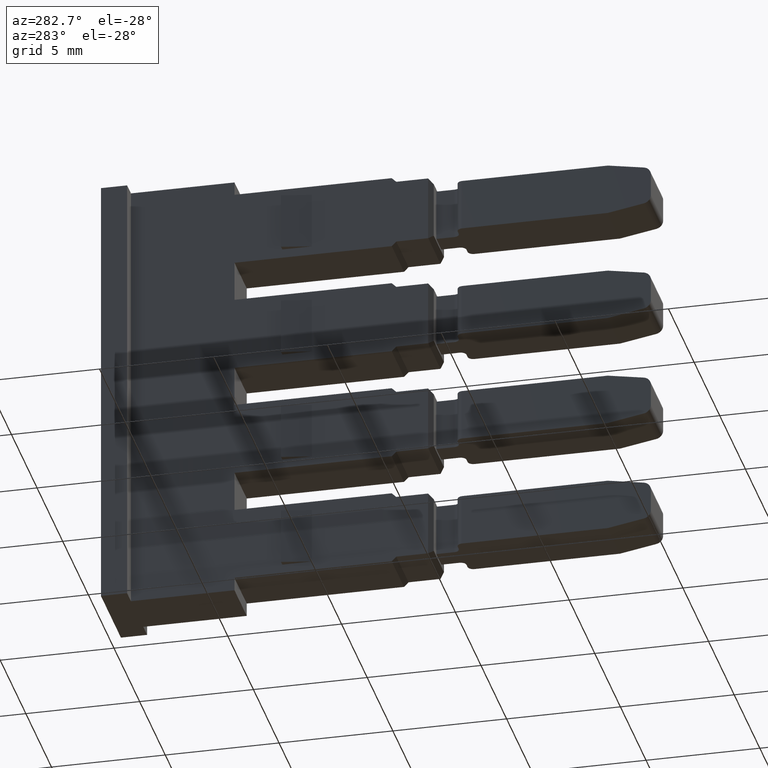
[diagram: clean part render]
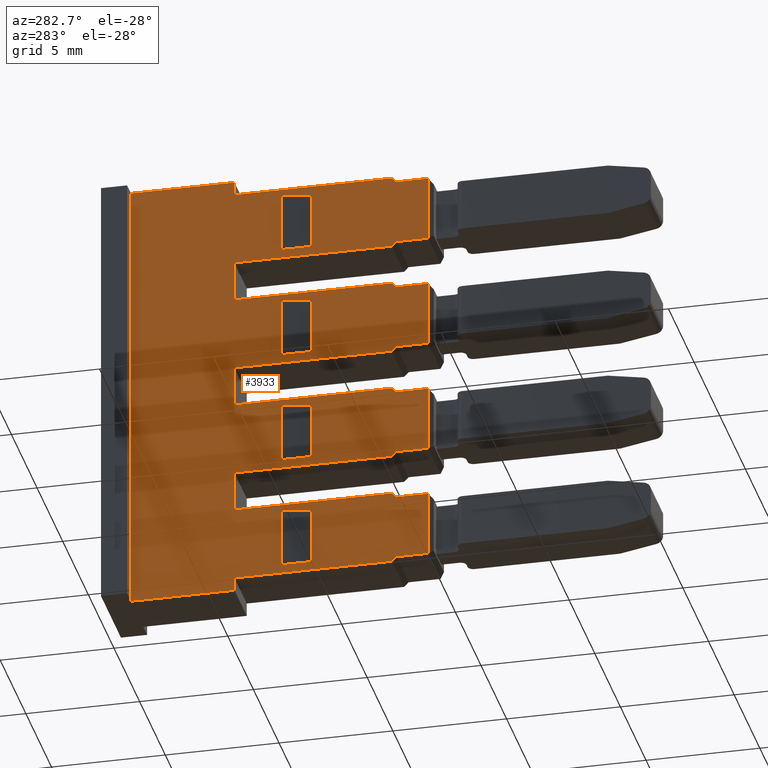
[diagram: same view with one face highlighted and labeled with its STEP entity id]
A machine part, auxiliary view. The second image highlights one B-rep face of the part: STEP entity #3933.
In plain terms, the highlighted planar face has unit normal (-1, -0, 0).
Its self-contained STEP definition (entity closure, byte-faithful):
#123 = VERTEX_POINT ( 'NONE', #4809 ) ;
#128 = VERTEX_POINT ( 'NONE', #4804 ) ;
#129 = VERTEX_POINT ( 'NONE', #4833 ) ;
#130 = VERTEX_POINT ( 'NONE', #4782 ) ;
#131 = VERTEX_POINT ( 'NONE', #4778 ) ;
#132 = VERTEX_POINT ( 'NONE', #4798 ) ;
#134 = VERTEX_POINT ( 'NONE', #4792 ) ;
#135 = VERTEX_POINT ( 'NONE', #4793 ) ;
#136 = VERTEX_POINT ( 'NONE', #4800 ) ;
#137 = VERTEX_POINT ( 'NONE', #4774 ) ;
#138 = VERTEX_POINT ( 'NONE', #4791 ) ;
#139 = VERTEX_POINT ( 'NONE', #4794 ) ;
#142 = VERTEX_POINT ( 'NONE', #4797 ) ;
#143 = VERTEX_POINT ( 'NONE', #4795 ) ;
#144 = VERTEX_POINT ( 'NONE', #4796 ) ;
#145 = VERTEX_POINT ( 'NONE', #4834 ) ;
#146 = VERTEX_POINT ( 'NONE', #4827 ) ;
#147 = VERTEX_POINT ( 'NONE', #4835 ) ;
#148 = VERTEX_POINT ( 'NONE', #4830 ) ;
#149 = VERTEX_POINT ( 'NONE', #4813 ) ;
#150 = VERTEX_POINT ( 'NONE', #4775 ) ;
#152 = VERTEX_POINT ( 'NONE', #4790 ) ;
#153 = VERTEX_POINT ( 'NONE', #4799 ) ;
#156 = VERTEX_POINT ( 'NONE', #4836 ) ;
#157 = VERTEX_POINT ( 'NONE', #4779 ) ;
#158 = VERTEX_POINT ( 'NONE', #4801 ) ;
#159 = VERTEX_POINT ( 'NONE', #4802 ) ;
#160 = VERTEX_POINT ( 'NONE', #4780 ) ;
#161 = VERTEX_POINT ( 'NONE', #4788 ) ;
#162 = VERTEX_POINT ( 'NONE', #4837 ) ;
#163 = VERTEX_POINT ( 'NONE', #4805 ) ;
#164 = VERTEX_POINT ( 'NONE', #4820 ) ;
#165 = VERTEX_POINT ( 'NONE', #4789 ) ;
#166 = VERTEX_POINT ( 'NONE', #4806 ) ;
#167 = VERTEX_POINT ( 'NONE', #4807 ) ;
#168 = VERTEX_POINT ( 'NONE', #4814 ) ;
#169 = VERTEX_POINT ( 'NONE', #4784 ) ;
#170 = VERTEX_POINT ( 'NONE', #4808 ) ;
#171 = VERTEX_POINT ( 'NONE', #4815 ) ;
#172 = VERTEX_POINT ( 'NONE', #4831 ) ;
#173 = VERTEX_POINT ( 'NONE', #4816 ) ;
#174 = VERTEX_POINT ( 'NONE', #4776 ) ;
#176 = VERTEX_POINT ( 'NONE', #4819 ) ;
#177 = VERTEX_POINT ( 'NONE', #4817 ) ;
#178 = VERTEX_POINT ( 'NONE', #4818 ) ;
#179 = VERTEX_POINT ( 'NONE', #4821 ) ;
#180 = VERTEX_POINT ( 'NONE', #4823 ) ;
#195 = VERTEX_POINT ( 'NONE', #4841 ) ;
#198 = VERTEX_POINT ( 'NONE', #4842 ) ;
#208 = VERTEX_POINT ( 'NONE', #4880 ) ;
#218 = VERTEX_POINT ( 'NONE', #4869 ) ;
#226 = VERTEX_POINT ( 'NONE', #4849 ) ;
#424 = ORIENTED_EDGE ( 'NONE', *, *, #3514, .T. ) ;
#425 = ORIENTED_EDGE ( 'NONE', *, *, #3445, .F. ) ;
#426 = ORIENTED_EDGE ( 'NONE', *, *, #3498, .T. ) ;
#427 = ORIENTED_EDGE ( 'NONE', *, *, #3509, .T. ) ;
#428 = ORIENTED_EDGE ( 'NONE', *, *, #3477, .T. ) ;
#429 = ORIENTED_EDGE ( 'NONE', *, *, #3501, .F. ) ;
#431 = ORIENTED_EDGE ( 'NONE', *, *, #3515, .T. ) ;
#432 = ORIENTED_EDGE ( 'NONE', *, *, #3472, .T. ) ;
#433 = ORIENTED_EDGE ( 'NONE', *, *, #3455, .F. ) ;
#436 = ORIENTED_EDGE ( 'NONE', *, *, #3470, .T. ) ;
#437 = ORIENTED_EDGE ( 'NONE', *, *, #3466, .T. ) ;
#438 = ORIENTED_EDGE ( 'NONE', *, *, #3524, .T. ) ;
#439 = ORIENTED_EDGE ( 'NONE', *, *, #3502, .T. ) ;
#440 = ORIENTED_EDGE ( 'NONE', *, *, #3463, .T. ) ;
#441 = ORIENTED_EDGE ( 'NONE', *, *, #3452, .T. ) ;
#442 = ORIENTED_EDGE ( 'NONE', *, *, #3529, .T. ) ;
#443 = ORIENTED_EDGE ( 'NONE', *, *, #3536, .T. ) ;
#444 = ORIENTED_EDGE ( 'NONE', *, *, #3446, .T. ) ;
#445 = ORIENTED_EDGE ( 'NONE', *, *, #3448, .T. ) ;
#448 = ORIENTED_EDGE ( 'NONE', *, *, #3473, .T. ) ;
#449 = ORIENTED_EDGE ( 'NONE', *, *, #3511, .T. ) ;
#451 = ORIENTED_EDGE ( 'NONE', *, *, #3467, .T. ) ;
#453 = ORIENTED_EDGE ( 'NONE', *, *, #3500, .T. ) ;
#454 = ORIENTED_EDGE ( 'NONE', *, *, #3454, .T. ) ;
#456 = ORIENTED_EDGE ( 'NONE', *, *, #3451, .T. ) ;
#457 = ORIENTED_EDGE ( 'NONE', *, *, #3489, .T. ) ;
#458 = ORIENTED_EDGE ( 'NONE', *, *, #3447, .F. ) ;
#459 = ORIENTED_EDGE ( 'NONE', *, *, #3459, .F. ) ;
#463 = ORIENTED_EDGE ( 'NONE', *, *, #3449, .T. ) ;
#464 = ORIENTED_EDGE ( 'NONE', *, *, #3486, .T. ) ;
#465 = ORIENTED_EDGE ( 'NONE', *, *, #3461, .T. ) ;
#466 = ORIENTED_EDGE ( 'NONE', *, *, #3532, .T. ) ;
#468 = ORIENTED_EDGE ( 'NONE', *, *, #3471, .T. ) ;
#469 = ORIENTED_EDGE ( 'NONE', *, *, #3465, .T. ) ;
#470 = ORIENTED_EDGE ( 'NONE', *, *, #3488, .T. ) ;
#473 = ORIENTED_EDGE ( 'NONE', *, *, #3512, .T. ) ;
#476 = ORIENTED_EDGE ( 'NONE', *, *, #3469, .F. ) ;
#477 = ORIENTED_EDGE ( 'NONE', *, *, #3458, .F. ) ;
#478 = ORIENTED_EDGE ( 'NONE', *, *, #3513, .T. ) ;
#479 = ORIENTED_EDGE ( 'NONE', *, *, #3456, .F. ) ;
#480 = ORIENTED_EDGE ( 'NONE', *, *, #3460, .T. ) ;
#481 = ORIENTED_EDGE ( 'NONE', *, *, #3453, .F. ) ;
#482 = ORIENTED_EDGE ( 'NONE', *, *, #3487, .T. ) ;
#495 = ORIENTED_EDGE ( 'NONE', *, *, #3450, .T. ) ;
#496 = ORIENTED_EDGE ( 'NONE', *, *, #3494, .T. ) ;
#515 = ORIENTED_EDGE ( 'NONE', *, *, #3503, .T. ) ;
#519 = ORIENTED_EDGE ( 'NONE', *, *, #3457, .T. ) ;
#520 = ORIENTED_EDGE ( 'NONE', *, *, #3462, .T. ) ;
#523 = ORIENTED_EDGE ( 'NONE', *, *, #3464, .T. ) ;
#532 = ORIENTED_EDGE ( 'NONE', *, *, #3493, .T. ) ;
#535 = ORIENTED_EDGE ( 'NONE', *, *, #3468, .F. ) ;
#545 = ORIENTED_EDGE ( 'NONE', *, *, #3528, .T. ) ;
#618 = EDGE_LOOP ( 'NONE', ( #470, #523, #456, #448 ) ) ;
#633 = EDGE_LOOP ( 'NONE', ( #496, #426, #532, #427 ) ) ;
#637 = EDGE_LOOP ( 'NONE', ( #451, #468, #432, #545 ) ) ;
#640 = EDGE_LOOP ( 'NONE', ( #466, #428, #464, #443, #459, #429, #457, #442, #440, #437, #482, #463, #477, #481, #480, #441, #454, #444, #438, #424, #458, #425, #439, #479, #453, #445, #465, #476, #519, #535, #433, #449, #515, #473, #478, #431 ) ) ;
#641 = EDGE_LOOP ( 'NONE', ( #436, #520, #469, #495 ) ) ;
#682 = VECTOR ( 'NONE', #5126, 1000.000000000000000 ) ;
#683 = VECTOR ( 'NONE', #5103, 1000.000000000000000 ) ;
#684 = VECTOR ( 'NONE', #5107, 1000.000000000000000 ) ;
#686 = VECTOR ( 'NONE', #5090, 1000.000000000000000 ) ;
#687 = VECTOR ( 'NONE', #5086, 1000.000000000000000 ) ;
#689 = VECTOR ( 'NONE', #5100, 1000.000000000000000 ) ;
#690 = VECTOR ( 'NONE', #5129, 1000.000000000000000 ) ;
#691 = VECTOR ( 'NONE', #5125, 1000.000000000000000 ) ;
#692 = VECTOR ( 'NONE', #5084, 1000.000000000000000 ) ;
#693 = VECTOR ( 'NONE', #5116, 1000.000000000000000 ) ;
#694 = VECTOR ( 'NONE', #5114, 1000.000000000000000 ) ;
#696 = VECTOR ( 'NONE', #5085, 1000.000000000000000 ) ;
#697 = VECTOR ( 'NONE', #5026, 1000.000000000000000 ) ;
#698 = VECTOR ( 'NONE', #5131, 1000.000000000000000 ) ;
#699 = VECTOR ( 'NONE', #5166, 1000.000000000000000 ) ;
#700 = VECTOR ( 'NONE', #5119, 1000.000000000000000 ) ;
#704 = VECTOR ( 'NONE', #5202, 1000.000000000000000 ) ;
#705 = VECTOR ( 'NONE', #5201, 1000.000000000000000 ) ;
#707 = VECTOR ( 'NONE', #5133, 1000.000000000000000 ) ;
#708 = VECTOR ( 'NONE', #5145, 1000.000000000000000 ) ;
#713 = VECTOR ( 'NONE', #5175, 1000.000000000000000 ) ;
#717 = VECTOR ( 'NONE', #5153, 1000.000000000000000 ) ;
#718 = VECTOR ( 'NONE', #5163, 1000.000000000000000 ) ;
#720 = VECTOR ( 'NONE', #5215, 1000.000000000000000 ) ;
#721 = VECTOR ( 'NONE', #5099, 1000.000000000000000 ) ;
#725 = VECTOR ( 'NONE', #5207, 1000.000000000000000 ) ;
#726 = VECTOR ( 'NONE', #5137, 1000.000000000000000 ) ;
#729 = VECTOR ( 'NONE', #5233, 1000.000000000000000 ) ;
#730 = VECTOR ( 'NONE', #5176, 1000.000000000000000 ) ;
#732 = VECTOR ( 'NONE', #5118, 1000.000000000000000 ) ;
#733 = VECTOR ( 'NONE', #5241, 1000.000000000000000 ) ;
#738 = VECTOR ( 'NONE', #5143, 1000.000000000000000 ) ;
#739 = VECTOR ( 'NONE', #5197, 1000.000000000000000 ) ;
#741 = VECTOR ( 'NONE', #5155, 1000.000000000000000 ) ;
#742 = VECTOR ( 'NONE', #5148, 1000.000000000000000 ) ;
#744 = VECTOR ( 'NONE', #5088, 1000.000000000000000 ) ;
#750 = VECTOR ( 'NONE', #5235, 1000.000000000000000 ) ;
#752 = VECTOR ( 'NONE', #5246, 1000.000000000000000 ) ;
#753 = VECTOR ( 'NONE', #3404, 1000.000000000000000 ) ;
#754 = VECTOR ( 'NONE', #5292, 1000.000000000000000 ) ;
#761 = VECTOR ( 'NONE', #5249, 1000.000000000000000 ) ;
#764 = VECTOR ( 'NONE', #3426, 1000.000000000000000 ) ;
#765 = VECTOR ( 'NONE', #3431, 1000.000000000000000 ) ;
#769 = VECTOR ( 'NONE', #2149, 1000.000000000000000 ) ;
#774 = VECTOR ( 'NONE', #5251, 1000.000000000000000 ) ;
#776 = VECTOR ( 'NONE', #5255, 1000.000000000000000 ) ;
#779 = VECTOR ( 'NONE', #5272, 1000.000000000000000 ) ;
#781 = VECTOR ( 'NONE', #5282, 1000.000000000000000 ) ;
#782 = VECTOR ( 'NONE', #5285, 1000.000000000000000 ) ;
#783 = VECTOR ( 'NONE', #5276, 1000.000000000000000 ) ;
#784 = VECTOR ( 'NONE', #5306, 1000.000000000000000 ) ;
#789 = VECTOR ( 'NONE', #3413, 1000.000000000000000 ) ;
#1197 = AXIS2_PLACEMENT_3D ( 'NONE', #2585, #2640, #2645 ) ;
#2149 = DIRECTION ( 'NONE',  ( 1.715124499442844000E-015, 1.097884403469707200E-029, 1.000000000000000000 ) ) ;
#2583 = FACE_BOUND ( 'NONE', #633, .T. ) ;
#2585 = CARTESIAN_POINT ( 'NONE',  ( 1456.839907072213900, 985.7826795374931000, -30.13084736897824800 ) ) ;
#2622 = FACE_BOUND ( 'NONE', #618, .T. ) ;
#2640 = DIRECTION ( 'NONE',  ( -1.000000000000000000, -6.401193638283130500E-015, 1.715124499442844000E-015 ) ) ;
#2641 = FACE_BOUND ( 'NONE', #641, .T. ) ;
#2643 = PLANE ( 'NONE',  #1197 ) ;
#2645 = DIRECTION ( 'NONE',  ( 6.401193638283130500E-015, -1.000000000000000000, 0.0000000000000000000 ) ) ;
#2648 = FACE_BOUND ( 'NONE', #637, .T. ) ;
#2669 = FACE_OUTER_BOUND ( 'NONE', #640, .T. ) ;
#3401 = LINE ( 'NONE', #3414, #769 ) ;
#3403 = LINE ( 'NONE', #3420, #789 ) ;
#3404 = DIRECTION ( 'NONE',  ( 1.715124499442844000E-015, 1.097884403469707200E-029, 1.000000000000000000 ) ) ;
#3407 = CARTESIAN_POINT ( 'NONE',  ( 1456.839907072213900, 983.9946795374812600, -30.13084736897824800 ) ) ;
#3413 = DIRECTION ( 'NONE',  ( 1.715124499442844000E-015, 1.097884403469707200E-029, 1.000000000000000000 ) ) ;
#3414 = CARTESIAN_POINT ( 'NONE',  ( 1456.839907072213900, 975.4826795374913200, -30.13084736897824800 ) ) ;
#3416 = CARTESIAN_POINT ( 'NONE',  ( 1456.839907072213900, 986.0926795374931500, 18.75000000013430700 ) ) ;
#3418 = LINE ( 'NONE', #3429, #764 ) ;
#3419 = LINE ( 'NONE', #3407, #753 ) ;
#3420 = CARTESIAN_POINT ( 'NONE',  ( 1456.839907072213900, 981.8926795374924300, -30.13084736897824800 ) ) ;
#3423 = LINE ( 'NONE', #3416, #765 ) ;
#3426 = DIRECTION ( 'NONE',  ( 0.0000000000000000000, -1.000000000000000000, -6.401193638283120300E-015 ) ) ;
#3429 = CARTESIAN_POINT ( 'NONE',  ( 1456.839907072214100, 975.4846795374918400, 29.15000000013439400 ) ) ;
#3431 = DIRECTION ( 'NONE',  ( 6.401193638283130500E-015, -1.000000000000000000, 0.0000000000000000000 ) ) ;
#3445 = EDGE_CURVE ( 'NONE', #136, #152, #5082, .T. ) ;
#3446 = EDGE_CURVE ( 'NONE', #132, #145, #5024, .T. ) ;
#3447 = EDGE_CURVE ( 'NONE', #152, #156, #5080, .T. ) ;
#3448 = EDGE_CURVE ( 'NONE', #134, #150, #5022, .T. ) ;
#3449 = EDGE_CURVE ( 'NONE', #178, #148, #5112, .T. ) ;
#3450 = EDGE_CURVE ( 'NONE', #139, #161, #5124, .T. ) ;
#3451 = EDGE_CURVE ( 'NONE', #147, #138, #5105, .T. ) ;
#3452 = EDGE_CURVE ( 'NONE', #123, #143, #5109, .T. ) ;
#3453 = EDGE_CURVE ( 'NONE', #137, #162, #5095, .T. ) ;
#3454 = EDGE_CURVE ( 'NONE', #143, #132, #5093, .T. ) ;
#3455 = EDGE_CURVE ( 'NONE', #174, #166, #5115, .T. ) ;
#3456 = EDGE_CURVE ( 'NONE', #129, #177, #5094, .T. ) ;
#3457 = EDGE_CURVE ( 'NONE', #180, #164, #5123, .T. ) ;
#3458 = EDGE_CURVE ( 'NONE', #162, #148, #5091, .T. ) ;
#3459 = EDGE_CURVE ( 'NONE', #128, #160, #5117, .T. ) ;
#3460 = EDGE_CURVE ( 'NONE', #137, #123, #5098, .T. ) ;
#3461 = EDGE_CURVE ( 'NONE', #150, #163, #5121, .T. ) ;
#3462 = EDGE_CURVE ( 'NONE', #173, #179, #5156, .T. ) ;
#3463 = EDGE_CURVE ( 'NONE', #158, #176, #5152, .T. ) ;
#3464 = EDGE_CURVE ( 'NONE', #171, #147, #5144, .T. ) ;
#3465 = EDGE_CURVE ( 'NONE', #179, #139, #5146, .T. ) ;
#3466 = EDGE_CURVE ( 'NONE', #176, #131, #5132, .T. ) ;
#3467 = EDGE_CURVE ( 'NONE', #168, #149, #5150, .T. ) ;
#3468 = EDGE_CURVE ( 'NONE', #166, #164, #5122, .T. ) ;
#3469 = EDGE_CURVE ( 'NONE', #180, #163, #5087, .T. ) ;
#3470 = EDGE_CURVE ( 'NONE', #161, #173, #5170, .T. ) ;
#3471 = EDGE_CURVE ( 'NONE', #149, #218, #5177, .T. ) ;
#3472 = EDGE_CURVE ( 'NONE', #218, #198, #5138, .T. ) ;
#3473 = EDGE_CURVE ( 'NONE', #138, #157, #5158, .T. ) ;
#3477 = EDGE_CURVE ( 'NONE', #144, #153, #5161, .T. ) ;
#3486 = EDGE_CURVE ( 'NONE', #153, #130, #5212, .T. ) ;
#3487 = EDGE_CURVE ( 'NONE', #131, #178, #5200, .T. ) ;
#3488 = EDGE_CURVE ( 'NONE', #157, #171, #5220, .T. ) ;
#3489 = EDGE_CURVE ( 'NONE', #135, #170, #5194, .T. ) ;
#3493 = EDGE_CURVE ( 'NONE', #195, #208, #5218, .T. ) ;
#3494 = EDGE_CURVE ( 'NONE', #146, #226, #5180, .T. ) ;
#3498 = EDGE_CURVE ( 'NONE', #226, #195, #5238, .T. ) ;
#3500 = EDGE_CURVE ( 'NONE', #129, #134, #5237, .T. ) ;
#3501 = EDGE_CURVE ( 'NONE', #135, #128, #5226, .T. ) ;
#3502 = EDGE_CURVE ( 'NONE', #136, #177, #5240, .T. ) ;
#3503 = EDGE_CURVE ( 'NONE', #167, #165, #5243, .T. ) ;
#3509 = EDGE_CURVE ( 'NONE', #208, #146, #5270, .T. ) ;
#3511 = EDGE_CURVE ( 'NONE', #174, #167, #5286, .T. ) ;
#3512 = EDGE_CURVE ( 'NONE', #165, #172, #5303, .T. ) ;
#3513 = EDGE_CURVE ( 'NONE', #172, #142, #5299, .T. ) ;
#3514 = EDGE_CURVE ( 'NONE', #169, #156, #5275, .T. ) ;
#3515 = EDGE_CURVE ( 'NONE', #142, #159, #5277, .T. ) ;
#3524 = EDGE_CURVE ( 'NONE', #145, #169, #3418, .T. ) ;
#3528 = EDGE_CURVE ( 'NONE', #198, #168, #3403, .T. ) ;
#3529 = EDGE_CURVE ( 'NONE', #170, #158, #3419, .T. ) ;
#3532 = EDGE_CURVE ( 'NONE', #159, #144, #3423, .T. ) ;
#3536 = EDGE_CURVE ( 'NONE', #130, #160, #3401, .T. ) ;
#3933 = ADVANCED_FACE ( 'NONE', ( #2669, #2641, #2622, #2648, #2583 ), #2643, .T. ) ;
#4774 = CARTESIAN_POINT ( 'NONE',  ( 1456.839907072214100, 977.0846795374965300, 27.15000000001604300 ) ) ;
#4775 = CARTESIAN_POINT ( 'NONE',  ( 1456.839907072213900, 988.5426795374916100, 13.05000000017583000 ) ) ;
#4776 = CARTESIAN_POINT ( 'NONE',  ( 1456.839907072213700, 975.4826795374916600, 13.85000000014722800 ) ) ;
#4778 = CARTESIAN_POINT ( 'NONE',  ( 1456.839907072214100, 976.8846795374909100, 24.05000000013441400 ) ) ;
#4779 = CARTESIAN_POINT ( 'NONE',  ( 1456.839907072214100, 981.8926795374925400, 21.65000000013441900 ) ) ;
#4780 = CARTESIAN_POINT ( 'NONE',  ( 1456.839907072214100, 975.4826795374916600, 21.85000000000350100 ) ) ;
#4782 = CARTESIAN_POINT ( 'NONE',  ( 1456.839907072214100, 975.4826795374913200, 18.95000000013422100 ) ) ;
#4784 = CARTESIAN_POINT ( 'NONE',  ( 1456.839907072214100, 975.4826795374910900, 29.15000000013422000 ) ) ;
#4788 = CARTESIAN_POINT ( 'NONE',  ( 1456.839907072214100, 981.8926795374923100, 31.85000000013441100 ) ) ;
#4789 = CARTESIAN_POINT ( 'NONE',  ( 1456.839907072214100, 976.8846795374910200, 16.75000000001611200 ) ) ;
#4790 = CARTESIAN_POINT ( 'NONE',  ( 1456.839907072214100, 976.8846795374842000, 32.05000000000348600 ) ) ;
#4791 = CARTESIAN_POINT ( 'NONE',  ( 1456.839907072214100, 981.8926795374925400, 19.15000000013441600 ) ) ;
#4792 = CARTESIAN_POINT ( 'NONE',  ( 1456.839907072213900, 988.5426795374913800, 32.84999999997480600 ) ) ;
#4793 = CARTESIAN_POINT ( 'NONE',  ( 1456.839907072214100, 977.0846795374967500, 22.05000000001604100 ) ) ;
#4794 = CARTESIAN_POINT ( 'NONE',  ( 1456.839907072214100, 981.8926795374923100, 29.35000000013441500 ) ) ;
#4795 = CARTESIAN_POINT ( 'NONE',  ( 1456.839907072214100, 983.9946795374841000, 28.95000000013430300 ) ) ;
#4796 = CARTESIAN_POINT ( 'NONE',  ( 1456.839907072214100, 977.0846795374909600, 18.75000000013433900 ) ) ;
#4797 = CARTESIAN_POINT ( 'NONE',  ( 1456.839907072213900, 983.9946795374930800, 16.95000000001634900 ) ) ;
#4798 = CARTESIAN_POINT ( 'NONE',  ( 1456.839907072214100, 977.0846795374907300, 28.95000000013434200 ) ) ;
#4799 = CARTESIAN_POINT ( 'NONE',  ( 1456.839907072214100, 976.8846795374910200, 18.95000000013441600 ) ) ;
#4800 = CARTESIAN_POINT ( 'NONE',  ( 1456.839907072214100, 977.0846795374965300, 32.25000000001604400 ) ) ;
#4801 = CARTESIAN_POINT ( 'NONE',  ( 1456.839907072214100, 983.9946795374841000, 23.85000000013430100 ) ) ;
#4802 = CARTESIAN_POINT ( 'NONE',  ( 1456.839907072214100, 983.9946795374929700, 18.75000000013430700 ) ) ;
#4804 = CARTESIAN_POINT ( 'NONE',  ( 1456.839907072214100, 976.8846795374843200, 21.85000000000345800 ) ) ;
#4805 = CARTESIAN_POINT ( 'NONE',  ( 1456.839907072213900, 983.9946795374828500, 13.05000000017583000 ) ) ;
#4806 = CARTESIAN_POINT ( 'NONE',  ( 1456.839907072213900, 976.8846795374842000, 13.85000000014719400 ) ) ;
#4807 = CARTESIAN_POINT ( 'NONE',  ( 1456.839907072214100, 975.4826795374915500, 16.75000000001595200 ) ) ;
#4808 = CARTESIAN_POINT ( 'NONE',  ( 1456.839907072213900, 983.9946795374829700, 22.05000000001642800 ) ) ;
#4809 = CARTESIAN_POINT ( 'NONE',  ( 1456.839907072213900, 983.9946795374828500, 27.15000000001643000 ) ) ;
#4813 = CARTESIAN_POINT ( 'NONE',  ( 1456.839907072214100, 980.5926795374924700, 26.75000000013442000 ) ) ;
#4814 = CARTESIAN_POINT ( 'NONE',  ( 1456.839907072214100, 981.8926795374924300, 26.75000000013442000 ) ) ;
#4815 = CARTESIAN_POINT ( 'NONE',  ( 1456.839907072214100, 980.5926795374925900, 21.65000000013441900 ) ) ;
#4816 = CARTESIAN_POINT ( 'NONE',  ( 1456.839907072214100, 980.5926795374923600, 31.85000000013441100 ) ) ;
#4817 = CARTESIAN_POINT ( 'NONE',  ( 1456.839907072213900, 983.9946795374818300, 32.25000000001642800 ) ) ;
#4818 = CARTESIAN_POINT ( 'NONE',  ( 1456.839907072214100, 975.4826795374912100, 24.05000000013422200 ) ) ;
#4819 = CARTESIAN_POINT ( 'NONE',  ( 1456.839907072214100, 977.0846795374909600, 23.85000000013434000 ) ) ;
#4820 = CARTESIAN_POINT ( 'NONE',  ( 1456.839907072214100, 977.0846795374966400, 13.65000000013454700 ) ) ;
#4821 = CARTESIAN_POINT ( 'NONE',  ( 1456.839907072214100, 980.5926795374925900, 29.35000000013441500 ) ) ;
#4823 = CARTESIAN_POINT ( 'NONE',  ( 1456.839907072214100, 983.9946795374820600, 13.65000000013411700 ) ) ;
#4827 = CARTESIAN_POINT ( 'NONE',  ( 1456.839907072214100, 981.8926795374925400, 16.55000000013441800 ) ) ;
#4830 = CARTESIAN_POINT ( 'NONE',  ( 1456.839907072214100, 975.4826795374914400, 26.95000000000346300 ) ) ;
#4831 = CARTESIAN_POINT ( 'NONE',  ( 1456.839907072214100, 977.0846795374909600, 16.95000000001629200 ) ) ;
#4833 = CARTESIAN_POINT ( 'NONE',  ( 1456.839907072213900, 983.9946795374812600, 32.84999999997480600 ) ) ;
#4834 = CARTESIAN_POINT ( 'NONE',  ( 1456.839907072214100, 976.8846795374908000, 29.15000000013441600 ) ) ;
#4835 = CARTESIAN_POINT ( 'NONE',  ( 1456.839907072214100, 980.5926795374928100, 19.15000000013441600 ) ) ;
#4836 = CARTESIAN_POINT ( 'NONE',  ( 1456.839907072214100, 975.4826795374914400, 32.05000000000350700 ) ) ;
#4837 = CARTESIAN_POINT ( 'NONE',  ( 1456.839907072214100, 976.8846795374840900, 26.95000000000344200 ) ) ;
#4841 = CARTESIAN_POINT ( 'NONE',  ( 1456.839907072214100, 980.5926795374928100, 14.05000000013441800 ) ) ;
#4842 = CARTESIAN_POINT ( 'NONE',  ( 1456.839907072214100, 981.8926795374924300, 24.25000000013441700 ) ) ;
#4849 = CARTESIAN_POINT ( 'NONE',  ( 1456.839907072214100, 980.5926795374925900, 16.55000000013441800 ) ) ;
#4869 = CARTESIAN_POINT ( 'NONE',  ( 1456.839907072214100, 980.5926795374928100, 24.25000000013441700 ) ) ;
#4880 = CARTESIAN_POINT ( 'NONE',  ( 1456.839907072214100, 981.8926795374925400, 14.05000000013441800 ) ) ;
#5022 = LINE ( 'NONE', #5128, #684 ) ;
#5023 = CARTESIAN_POINT ( 'NONE',  ( 1456.839907072214100, 977.1846795374845000, 32.35000000000363900 ) ) ;
#5024 = LINE ( 'NONE', #5104, #696 ) ;
#5026 = DIRECTION ( 'NONE',  ( 0.0000000000000000000, -0.7071067811866149600, -0.7071067811864800700 ) ) ;
#5080 = LINE ( 'NONE', #5108, #690 ) ;
#5082 = LINE ( 'NONE', #5023, #697 ) ;
#5084 = DIRECTION ( 'NONE',  ( 0.0000000000000000000, -0.0000000000000000000, -1.000000000000000000 ) ) ;
#5085 = DIRECTION ( 'NONE',  ( 0.0000000000000000000, -0.7071067811866059700, 0.7071067811864890600 ) ) ;
#5086 = DIRECTION ( 'NONE',  ( 0.0000000000000000000, 1.000000000000000000, -6.401193638283150300E-015 ) ) ;
#5087 = LINE ( 'NONE', #5134, #730 ) ;
#5088 = DIRECTION ( 'NONE',  ( 6.401193638283130500E-015, -1.000000000000000000, 0.0000000000000000000 ) ) ;
#5089 = CARTESIAN_POINT ( 'NONE',  ( 1456.839907072213900, 986.0926795374931500, 19.15000000013441600 ) ) ;
#5090 = DIRECTION ( 'NONE',  ( 0.0000000000000000000, -0.7071067811866149600, -0.7071067811864800700 ) ) ;
#5091 = LINE ( 'NONE', #5106, #732 ) ;
#5092 = CARTESIAN_POINT ( 'NONE',  ( 1456.839907072213900, 981.8926795374923100, -30.13084736897824800 ) ) ;
#5093 = LINE ( 'NONE', #5110, #691 ) ;
#5094 = LINE ( 'NONE', #5111, #692 ) ;
#5095 = LINE ( 'NONE', #5113, #686 ) ;
#5096 = CARTESIAN_POINT ( 'NONE',  ( 1456.839907072214100, 986.7826795374850200, 21.85000000000360700 ) ) ;
#5097 = CARTESIAN_POINT ( 'NONE',  ( 1456.839907072213900, 986.0926795374931500, 13.05000000017582800 ) ) ;
#5098 = LINE ( 'NONE', #5120, #721 ) ;
#5099 = DIRECTION ( 'NONE',  ( -6.401193638283130500E-015, 1.000000000000000000, -0.0000000000000000000 ) ) ;
#5100 = DIRECTION ( 'NONE',  ( 6.401193638283130500E-015, -1.000000000000000000, 0.0000000000000000000 ) ) ;
#5101 = CARTESIAN_POINT ( 'NONE',  ( 1456.839907072213900, 985.7826795374931000, 13.65000000013410600 ) ) ;
#5102 = CARTESIAN_POINT ( 'NONE',  ( 1456.839907072213900, 983.9946795374811500, -30.13084736897824800 ) ) ;
#5103 = DIRECTION ( 'NONE',  ( 1.715124499442844000E-015, 1.097884403469707200E-029, 1.000000000000000000 ) ) ;
#5104 = CARTESIAN_POINT ( 'NONE',  ( 1456.839907072214100, 976.8346795374908400, 29.20000000013440200 ) ) ;
#5105 = LINE ( 'NONE', #5089, #694 ) ;
#5106 = CARTESIAN_POINT ( 'NONE',  ( 1456.839907072214100, 986.7826795374849100, 26.95000000000360500 ) ) ;
#5107 = DIRECTION ( 'NONE',  ( -1.715124499442844000E-015, -1.097884403469707200E-029, -1.000000000000000000 ) ) ;
#5108 = CARTESIAN_POINT ( 'NONE',  ( 1456.839907072214100, 986.7826795374848000, 32.05000000000361400 ) ) ;
#5109 = LINE ( 'NONE', #5102, #693 ) ;
#5110 = CARTESIAN_POINT ( 'NONE',  ( 1456.839907072213900, 986.0926795374931500, 28.95000000013430300 ) ) ;
#5111 = CARTESIAN_POINT ( 'NONE',  ( 1456.839907072213900, 983.9946795374810300, 35.95167590508091100 ) ) ;
#5112 = LINE ( 'NONE', #5130, #683 ) ;
#5113 = CARTESIAN_POINT ( 'NONE',  ( 1456.839907072214100, 977.1846795374846100, 27.25000000000364200 ) ) ;
#5114 = DIRECTION ( 'NONE',  ( -6.401193638283130500E-015, 1.000000000000000000, -0.0000000000000000000 ) ) ;
#5115 = LINE ( 'NONE', #5127, #687 ) ;
#5116 = DIRECTION ( 'NONE',  ( 1.715124499442844000E-015, 1.097884403469707200E-029, 1.000000000000000000 ) ) ;
#5117 = LINE ( 'NONE', #5096, #700 ) ;
#5118 = DIRECTION ( 'NONE',  ( 0.0000000000000000000, -1.000000000000000000, -6.401193638283120300E-015 ) ) ;
#5119 = DIRECTION ( 'NONE',  ( 0.0000000000000000000, -1.000000000000000000, -6.401193638283120300E-015 ) ) ;
#5120 = CARTESIAN_POINT ( 'NONE',  ( 1456.839907072213900, 986.0926795374931500, 27.15000000001619900 ) ) ;
#5121 = LINE ( 'NONE', #5097, #744 ) ;
#5122 = LINE ( 'NONE', #5169, #718 ) ;
#5123 = LINE ( 'NONE', #5101, #689 ) ;
#5124 = LINE ( 'NONE', #5092, #682 ) ;
#5125 = DIRECTION ( 'NONE',  ( 6.401193638283130500E-015, -1.000000000000000000, 0.0000000000000000000 ) ) ;
#5126 = DIRECTION ( 'NONE',  ( 1.715124499442844000E-015, 1.097884403469707200E-029, 1.000000000000000000 ) ) ;
#5127 = CARTESIAN_POINT ( 'NONE',  ( 1456.839907072213700, 986.7826795374850200, 13.85000000014700600 ) ) ;
#5128 = CARTESIAN_POINT ( 'NONE',  ( 1456.839907072213900, 988.5426795374913800, -30.13084736897824800 ) ) ;
#5129 = DIRECTION ( 'NONE',  ( 0.0000000000000000000, -1.000000000000000000, -6.401193638283120300E-015 ) ) ;
#5130 = CARTESIAN_POINT ( 'NONE',  ( 1456.839907072213900, 975.4826795374912100, -30.13084736897824800 ) ) ;
#5131 = DIRECTION ( 'NONE',  ( 1.715124499442844000E-015, 1.097884403469707200E-029, 1.000000000000000000 ) ) ;
#5132 = LINE ( 'NONE', #5147, #717 ) ;
#5133 = DIRECTION ( 'NONE',  ( -1.715124499442844000E-015, -1.097884403469707200E-029, -1.000000000000000000 ) ) ;
#5134 = CARTESIAN_POINT ( 'NONE',  ( 1456.839907072213900, 983.9946795374812600, 9.948324095069720500 ) ) ;
#5135 = CARTESIAN_POINT ( 'NONE',  ( 1456.839907072213900, 986.0926795374931500, 23.85000000013430800 ) ) ;
#5136 = CARTESIAN_POINT ( 'NONE',  ( 1456.839907072213900, 980.5926795374923600, -30.13084736897824800 ) ) ;
#5137 = DIRECTION ( 'NONE',  ( 6.401193638283130500E-015, -1.000000000000000000, 0.0000000000000000000 ) ) ;
#5138 = LINE ( 'NONE', #5165, #742 ) ;
#5140 = CARTESIAN_POINT ( 'NONE',  ( 1456.839907072214100, 976.8346795374910700, 19.00000000013440300 ) ) ;
#5142 = CARTESIAN_POINT ( 'NONE',  ( 1456.839907072213900, 980.5926795374925900, -30.13084736897824800 ) ) ;
#5143 = DIRECTION ( 'NONE',  ( -1.715124499442844000E-015, -1.097884403469707200E-029, -1.000000000000000000 ) ) ;
#5144 = LINE ( 'NONE', #5142, #738 ) ;
#5145 = DIRECTION ( 'NONE',  ( 6.401193638283130500E-015, -1.000000000000000000, 0.0000000000000000000 ) ) ;
#5146 = LINE ( 'NONE', #5157, #713 ) ;
#5147 = CARTESIAN_POINT ( 'NONE',  ( 1456.839907072214100, 976.8346795374909600, 24.10000000013440800 ) ) ;
#5148 = DIRECTION ( 'NONE',  ( -6.401193638283130500E-015, 1.000000000000000000, -0.0000000000000000000 ) ) ;
#5150 = LINE ( 'NONE', #5168, #741 ) ;
#5152 = LINE ( 'NONE', #5135, #708 ) ;
#5153 = DIRECTION ( 'NONE',  ( 0.0000000000000000000, -0.7071067811866059700, 0.7071067811864890600 ) ) ;
#5155 = DIRECTION ( 'NONE',  ( 6.401193638283130500E-015, -1.000000000000000000, 0.0000000000000000000 ) ) ;
#5156 = LINE ( 'NONE', #5136, #707 ) ;
#5157 = CARTESIAN_POINT ( 'NONE',  ( 1456.839907072213900, 986.0926795374931500, 29.35000000013441100 ) ) ;
#5158 = LINE ( 'NONE', #5164, #698 ) ;
#5160 = CARTESIAN_POINT ( 'NONE',  ( 1456.839907072213900, 986.0926795374931500, 31.85000000013441100 ) ) ;
#5161 = LINE ( 'NONE', #5140, #725 ) ;
#5163 = DIRECTION ( 'NONE',  ( 0.0000000000000000000, 0.7071067811866149600, -0.7071067811864800700 ) ) ;
#5164 = CARTESIAN_POINT ( 'NONE',  ( 1456.839907072213900, 981.8926795374925400, -30.13084736897824800 ) ) ;
#5165 = CARTESIAN_POINT ( 'NONE',  ( 1456.839907072213900, 986.0926795374931500, 24.25000000013441700 ) ) ;
#5166 = DIRECTION ( 'NONE',  ( -1.715124499442844000E-015, -1.097884403469707200E-029, -1.000000000000000000 ) ) ;
#5168 = CARTESIAN_POINT ( 'NONE',  ( 1456.839907072213900, 986.0926795374931500, 26.75000000013442000 ) ) ;
#5169 = CARTESIAN_POINT ( 'NONE',  ( 1456.839907072214100, 977.1846795374846100, 13.55000000014707800 ) ) ;
#5170 = LINE ( 'NONE', #5160, #726 ) ;
#5171 = CARTESIAN_POINT ( 'NONE',  ( 1456.839907072213900, 980.5926795374924700, -30.13084736897824800 ) ) ;
#5175 = DIRECTION ( 'NONE',  ( -6.401193638283130500E-015, 1.000000000000000000, -0.0000000000000000000 ) ) ;
#5176 = DIRECTION ( 'NONE',  ( 7.927109478476022300E-039, -5.228168483536330500E-027, -1.000000000000000000 ) ) ;
#5177 = LINE ( 'NONE', #5171, #699 ) ;
#5180 = LINE ( 'NONE', #5229, #733 ) ;
#5194 = LINE ( 'NONE', #5222, #704 ) ;
#5197 = DIRECTION ( 'NONE',  ( 0.0000000000000000000, -1.000000000000000000, -6.401193638283120300E-015 ) ) ;
#5200 = LINE ( 'NONE', #5205, #705 ) ;
#5201 = DIRECTION ( 'NONE',  ( 0.0000000000000000000, -1.000000000000000000, -6.401193638283120300E-015 ) ) ;
#5202 = DIRECTION ( 'NONE',  ( -6.401193638283130500E-015, 1.000000000000000000, -0.0000000000000000000 ) ) ;
#5205 = CARTESIAN_POINT ( 'NONE',  ( 1456.839907072214100, 975.4846795374919600, 24.05000000013439600 ) ) ;
#5207 = DIRECTION ( 'NONE',  ( 0.0000000000000000000, -0.7071067811866059700, 0.7071067811864890600 ) ) ;
#5212 = LINE ( 'NONE', #5219, #739 ) ;
#5214 = CARTESIAN_POINT ( 'NONE',  ( 1456.839907072213900, 986.0926795374931500, 21.65000000013441900 ) ) ;
#5215 = DIRECTION ( 'NONE',  ( 6.401193638283130500E-015, -1.000000000000000000, 0.0000000000000000000 ) ) ;
#5218 = LINE ( 'NONE', #5247, #729 ) ;
#5219 = CARTESIAN_POINT ( 'NONE',  ( 1456.839907072214100, 975.4846795374920700, 18.95000000013439800 ) ) ;
#5220 = LINE ( 'NONE', #5214, #720 ) ;
#5222 = CARTESIAN_POINT ( 'NONE',  ( 1456.839907072213900, 986.0926795374931500, 22.05000000001619800 ) ) ;
#5226 = LINE ( 'NONE', #5234, #750 ) ;
#5229 = CARTESIAN_POINT ( 'NONE',  ( 1456.839907072213900, 986.0926795374931500, 16.55000000013441800 ) ) ;
#5233 = DIRECTION ( 'NONE',  ( -6.401193638283130500E-015, 1.000000000000000000, -0.0000000000000000000 ) ) ;
#5234 = CARTESIAN_POINT ( 'NONE',  ( 1456.839907072214100, 977.1846795374846100, 22.15000000000364400 ) ) ;
#5235 = DIRECTION ( 'NONE',  ( 0.0000000000000000000, -0.7071067811866149600, -0.7071067811864800700 ) ) ;
#5237 = LINE ( 'NONE', #5261, #774 ) ;
#5238 = LINE ( 'NONE', #5259, #776 ) ;
#5240 = LINE ( 'NONE', #5248, #761 ) ;
#5241 = DIRECTION ( 'NONE',  ( 6.401193638283130500E-015, -1.000000000000000000, 0.0000000000000000000 ) ) ;
#5243 = LINE ( 'NONE', #5256, #752 ) ;
#5246 = DIRECTION ( 'NONE',  ( 0.0000000000000000000, 1.000000000000000000, -6.401193638283150300E-015 ) ) ;
#5247 = CARTESIAN_POINT ( 'NONE',  ( 1456.839907072213900, 986.0926795374931500, 14.05000000013441800 ) ) ;
#5248 = CARTESIAN_POINT ( 'NONE',  ( 1456.839907072213900, 986.0926795374931500, 32.25000000001619300 ) ) ;
#5249 = DIRECTION ( 'NONE',  ( -6.401193638283130500E-015, 1.000000000000000000, -0.0000000000000000000 ) ) ;
#5251 = DIRECTION ( 'NONE',  ( -6.401193638283130500E-015, 1.000000000000000000, -0.0000000000000000000 ) ) ;
#5255 = DIRECTION ( 'NONE',  ( -1.715124499442844000E-015, -1.097884403469707200E-029, -1.000000000000000000 ) ) ;
#5256 = CARTESIAN_POINT ( 'NONE',  ( 1456.839907072213900, 975.4846795374920700, 16.75000000001620400 ) ) ;
#5259 = CARTESIAN_POINT ( 'NONE',  ( 1456.839907072213900, 980.5926795374925900, -30.13084736897824800 ) ) ;
#5261 = CARTESIAN_POINT ( 'NONE',  ( 1456.839907072213900, 986.0926795374931500, 32.84999999997480600 ) ) ;
#5270 = LINE ( 'NONE', #5271, #779 ) ;
#5271 = CARTESIAN_POINT ( 'NONE',  ( 1456.839907072213900, 981.8926795374925400, -30.13084736897824800 ) ) ;
#5272 = DIRECTION ( 'NONE',  ( 1.715124499442844000E-015, 1.097884403469707200E-029, 1.000000000000000000 ) ) ;
#5274 = CARTESIAN_POINT ( 'NONE',  ( 1456.839907072213900, 985.7826795374931000, 16.95000000001634500 ) ) ;
#5275 = LINE ( 'NONE', #5287, #781 ) ;
#5276 = DIRECTION ( 'NONE',  ( 0.0000000000000000000, 0.7071067811866059700, 0.7071067811864890600 ) ) ;
#5277 = LINE ( 'NONE', #5309, #754 ) ;
#5282 = DIRECTION ( 'NONE',  ( 1.715124499442844000E-015, 1.097884403469707200E-029, 1.000000000000000000 ) ) ;
#5285 = DIRECTION ( 'NONE',  ( -6.401193638283130500E-015, 1.000000000000000000, -0.0000000000000000000 ) ) ;
#5286 = LINE ( 'NONE', #5297, #784 ) ;
#5287 = CARTESIAN_POINT ( 'NONE',  ( 1456.839907072213900, 975.4826795374910900, -30.13084736897824800 ) ) ;
#5289 = CARTESIAN_POINT ( 'NONE',  ( 1456.839907072214100, 976.8346795374910700, 16.70000000001620000 ) ) ;
#5292 = DIRECTION ( 'NONE',  ( 1.715124499442844000E-015, 1.097884403469707200E-029, 1.000000000000000000 ) ) ;
#5297 = CARTESIAN_POINT ( 'NONE',  ( 1456.839907072213900, 975.4826795374917800, -30.13084736897824800 ) ) ;
#5299 = LINE ( 'NONE', #5274, #782 ) ;
#5303 = LINE ( 'NONE', #5289, #783 ) ;
#5306 = DIRECTION ( 'NONE',  ( 1.715124499442844000E-015, 1.097884403469707200E-029, 1.000000000000000000 ) ) ;
#5309 = CARTESIAN_POINT ( 'NONE',  ( 1456.839907072213900, 983.9946795374930800, -30.13084736897824800 ) ) ;